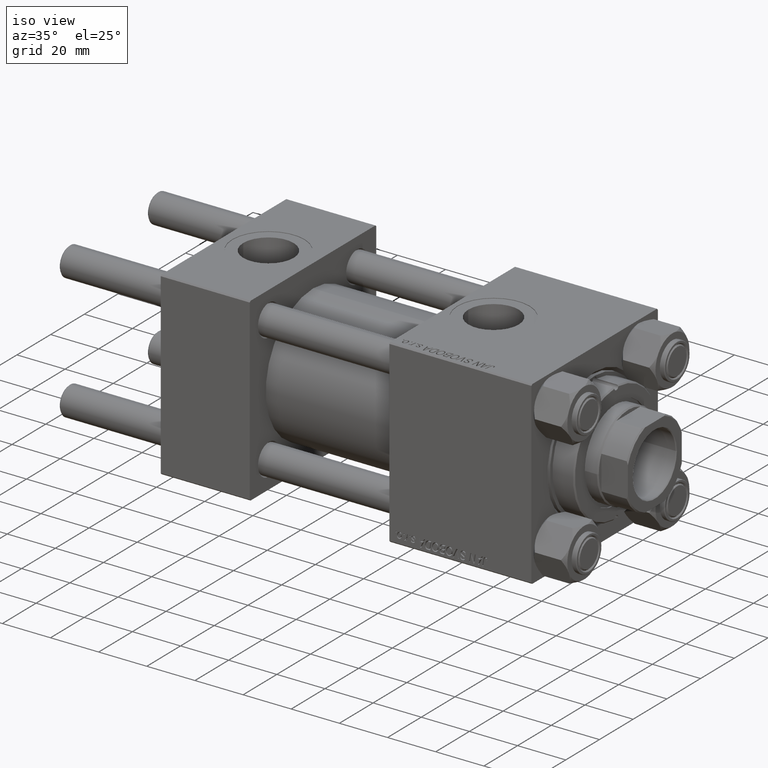
[diagram: clean part render]
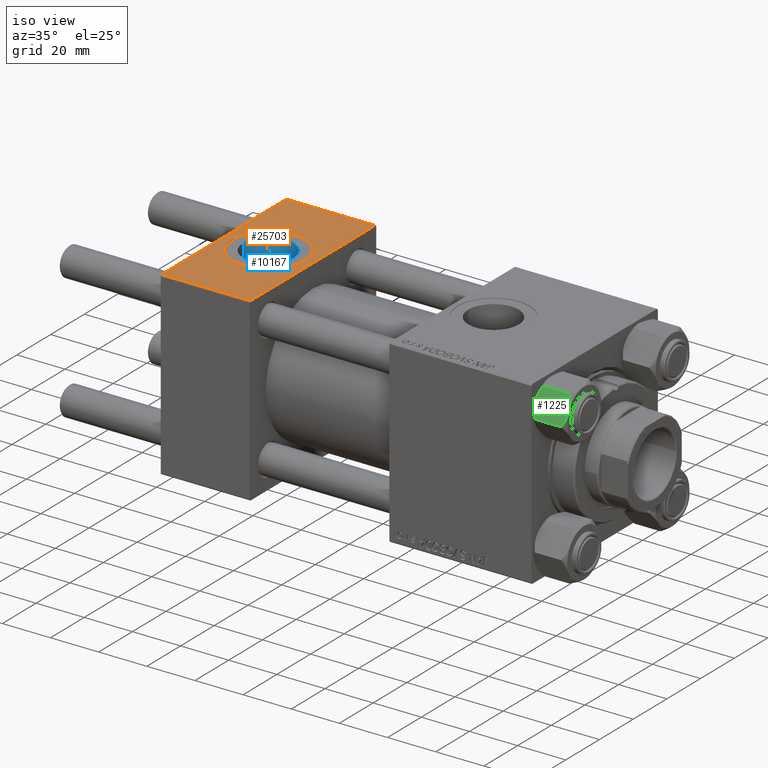
[diagram: same view with three faces highlighted in distinct colors, each labeled with its STEP entity id]
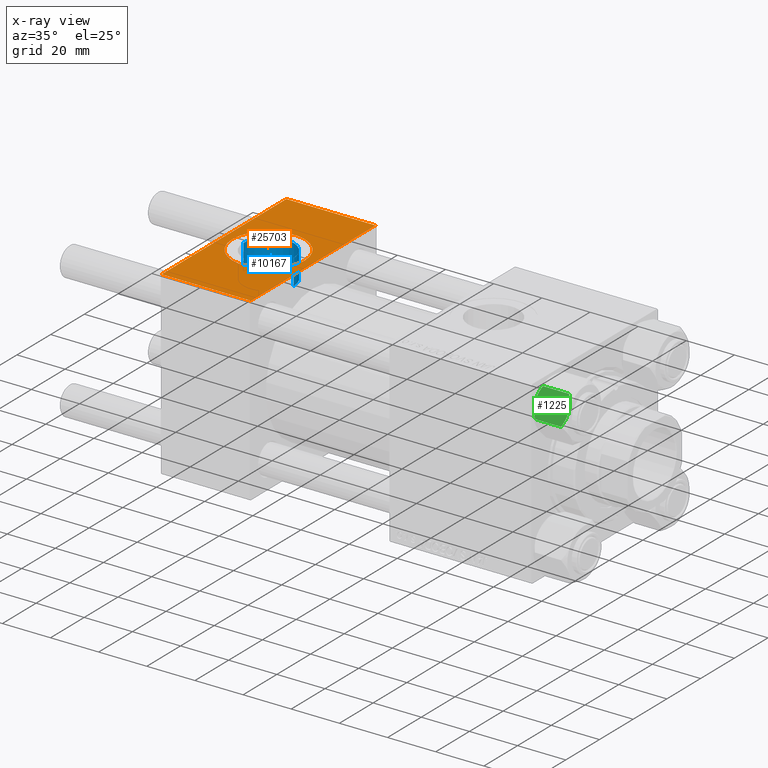
[diagram: x-ray of the same camera — body ghosted, the three highlighted faces saturated]
A machine part, iso view with three faces highlighted in distinct colors.
The next image is the same camera in x-ray (body ghosted, the three faces saturated) — at least one of them is partly hidden behind the body in this view.
Their STEP definitions:

[orange] entity #25703 — the highlighted planar face has unit normal (0, 0, -1).
#24 = VERTEX_POINT ( 'NONE', #30484 ) ;
#203 = EDGE_CURVE ( 'NONE', #17480, #24, #43848, .T. ) ;
#863 = ORIENTED_EDGE ( 'NONE', *, *, #40513, .F. ) ;
#1238 = CARTESIAN_POINT ( 'NONE',  ( 18.50000000000000000, -5.204170427930421283E-15, 37.50000000000000000 ) ) ;
#1673 = FACE_BOUND ( 'NONE', #30234, .T. ) ;
#2410 = PLANE ( 'NONE',  #31658 ) ;
#2637 = EDGE_CURVE ( 'NONE', #40175, #49337, #19119, .T. ) ;
#3749 = VECTOR ( 'NONE', #22657, 1000.000000000000000 ) ;
#7217 = CARTESIAN_POINT ( 'NONE',  ( 37.00000000000000000, 37.49999999999999289, 37.50000000000000000 ) ) ;
#7795 = LINE ( 'NONE', #45960, #21044 ) ;
#7820 = AXIS2_PLACEMENT_3D ( 'NONE', #1238, #16659, #32072 ) ;
#8464 = DIRECTION ( 'NONE',  ( 0.000000000000000000, -1.000000000000000000, -9.251858538542971581E-17 ) ) ;
#9344 = CARTESIAN_POINT ( 'NONE',  ( 18.50000000000000000, -5.204170427930421283E-15, 37.50000000000000000 ) ) ;
#10471 = VERTEX_POINT ( 'NONE', #47109 ) ;
#10489 = CARTESIAN_POINT ( 'NONE',  ( 37.00000000000000000, 37.49999999999999289, 37.50000000000000000 ) ) ;
#10587 = CIRCLE ( 'NONE', #46090, 15.00000000000000355 ) ;
#10822 = ORIENTED_EDGE ( 'NONE', *, *, #16105, .T. ) ;
#12034 = EDGE_CURVE ( 'NONE', #10471, #13330, #7795, .T. ) ;
#13330 = VERTEX_POINT ( 'NONE', #32987 ) ;
#16105 = EDGE_CURVE ( 'NONE', #24, #10471, #43587, .T. ) ;
#16659 = DIRECTION ( 'NONE',  ( 0.000000000000000000, 0.000000000000000000, 1.000000000000000000 ) ) ;
#17059 = ORIENTED_EDGE ( 'NONE', *, *, #203, .T. ) ;
#17158 = EDGE_CURVE ( 'NONE', #49337, #40175, #10587, .T. ) ;
#17480 = VERTEX_POINT ( 'NONE', #49863 ) ;
#17693 = EDGE_LOOP ( 'NONE', ( #10822, #42176, #863, #17059 ) ) ;
#18698 = ORIENTED_EDGE ( 'NONE', *, *, #2637, .F. ) ;
#18903 = ORIENTED_EDGE ( 'NONE', *, *, #17158, .F. ) ;
#19119 = CIRCLE ( 'NONE', #7820, 15.00000000000000355 ) ;
#20867 = CARTESIAN_POINT ( 'NONE',  ( 0.000000000000000000, 36.99999999999999289, 37.50000000000000000 ) ) ;
#21044 = VECTOR ( 'NONE', #30308, 1000.000000000000000 ) ;
#22657 = DIRECTION ( 'NONE',  ( 0.000000000000000000, -1.000000000000000000, -9.251858538542971581E-17 ) ) ;
#25703 = ADVANCED_FACE ( 'NONE', ( #1673, #32507 ), #2410, .F. ) ;
#27696 = DIRECTION ( 'NONE',  ( -1.000000000000000000, 0.000000000000000000, 0.000000000000000000 ) ) ;
#28725 = VECTOR ( 'NONE', #27696, 1000.000000000000000 ) ;
#29739 = LINE ( 'NONE', #7217, #3749 ) ;
#30234 = EDGE_LOOP ( 'NONE', ( #18698, #18903 ) ) ;
#30308 = DIRECTION ( 'NONE',  ( 1.000000000000000000, 0.000000000000000000, 0.000000000000000000 ) ) ;
#30484 = CARTESIAN_POINT ( 'NONE',  ( 0.000000000000000000, 36.99999999999999289, 37.50000000000000000 ) ) ;
#31658 = AXIS2_PLACEMENT_3D ( 'NONE', #10489, #48640, #44612 ) ;
#32072 = DIRECTION ( 'NONE',  ( 1.000000000000000000, 0.000000000000000000, 0.000000000000000000 ) ) ;
#32507 = FACE_OUTER_BOUND ( 'NONE', #17693, .T. ) ;
#32987 = CARTESIAN_POINT ( 'NONE',  ( 37.00000000000000000, -37.00000000000000711, 37.49999999999999289 ) ) ;
#36875 = CARTESIAN_POINT ( 'NONE',  ( 33.50000000000000000, -5.204170427930421283E-15, 37.50000000000000000 ) ) ;
#38375 = CARTESIAN_POINT ( 'NONE',  ( 3.499999999999997780, -3.367200229209391300E-15, 37.50000000000000000 ) ) ;
#38808 = VECTOR ( 'NONE', #8464, 1000.000000000000000 ) ;
#40175 = VERTEX_POINT ( 'NONE', #36875 ) ;
#40513 = EDGE_CURVE ( 'NONE', #17480, #13330, #29739, .T. ) ;
#42176 = ORIENTED_EDGE ( 'NONE', *, *, #12034, .T. ) ;
#43587 = LINE ( 'NONE', #47870, #38808 ) ;
#43848 = LINE ( 'NONE', #20867, #28725 ) ;
#44212 = DIRECTION ( 'NONE',  ( 1.000000000000000000, 0.000000000000000000, 0.000000000000000000 ) ) ;
#44458 = DIRECTION ( 'NONE',  ( 0.000000000000000000, 0.000000000000000000, 1.000000000000000000 ) ) ;
#44612 = DIRECTION ( 'NONE',  ( 0.000000000000000000, 1.000000000000000000, 9.251858538542971581E-17 ) ) ;
#45960 = CARTESIAN_POINT ( 'NONE',  ( 37.00000000000000000, -37.00000000000000711, 37.49999999999999289 ) ) ;
#46090 = AXIS2_PLACEMENT_3D ( 'NONE', #9344, #44458, #44212 ) ;
#47109 = CARTESIAN_POINT ( 'NONE',  ( 0.000000000000000000, -37.00000000000000711, 37.49999999999999289 ) ) ;
#47870 = CARTESIAN_POINT ( 'NONE',  ( 0.000000000000000000, 37.49999999999999289, 37.50000000000000000 ) ) ;
#48640 = DIRECTION ( 'NONE',  ( 0.000000000000000000, 9.251858538542971581E-17, -1.000000000000000000 ) ) ;
#49337 = VERTEX_POINT ( 'NONE', #38375 ) ;
#49863 = CARTESIAN_POINT ( 'NONE',  ( 37.00000000000000000, 36.99999999999999289, 37.50000000000000000 ) ) ;

[blue] entity #10167 — the highlighted cylindrical surface (edge-blend (fillet) strip) has radius 10.48 mm, axis along (0, 0, 1).
#5131 = CARTESIAN_POINT ( 'NONE',  ( 18.50000000000000000, -5.204170427930421283E-15, 26.69999999999999929 ) ) ;
#5444 = AXIS2_PLACEMENT_3D ( 'NONE', #43717, #24042, #16447 ) ;
#7341 = VERTEX_POINT ( 'NONE', #30363 ) ;
#7525 = LINE ( 'NONE', #46688, #9277 ) ;
#8859 = VERTEX_POINT ( 'NONE', #12100 ) ;
#9277 = VECTOR ( 'NONE', #23970, 1000.000000000000000 ) ;
#9351 = ORIENTED_EDGE ( 'NONE', *, *, #24565, .T. ) ;
#9999 = DIRECTION ( 'NONE',  ( 1.000000000000000000, 0.000000000000000000, 0.000000000000000000 ) ) ;
#10167 = ADVANCED_FACE ( 'NONE', ( #14048 ), #44118, .F. ) ;
#10486 = AXIS2_PLACEMENT_3D ( 'NONE', #37278, #22137, #9999 ) ;
#12100 = CARTESIAN_POINT ( 'NONE',  ( 8.019999999999999574, -3.920740582423995006E-15, 26.69999999999999929 ) ) ;
#14048 = FACE_OUTER_BOUND ( 'NONE', #31343, .T. ) ;
#16447 = DIRECTION ( 'NONE',  ( 1.000000000000000000, 0.000000000000000000, 0.000000000000000000 ) ) ;
#17012 = DIRECTION ( 'NONE',  ( 0.000000000000000000, 0.000000000000000000, 1.000000000000000000 ) ) ;
#17867 = ORIENTED_EDGE ( 'NONE', *, *, #46089, .F. ) ;
#20051 = DIRECTION ( 'NONE',  ( 1.000000000000000000, 0.000000000000000000, 0.000000000000000000 ) ) ;
#22137 = DIRECTION ( 'NONE',  ( -0.000000000000000000, -0.000000000000000000, 1.000000000000000000 ) ) ;
#23207 = CIRCLE ( 'NONE', #42555, 10.48000000000000043 ) ;
#23347 = CARTESIAN_POINT ( 'NONE',  ( 28.98000000000000043, -5.204170427930421283E-15, 26.69999999999999929 ) ) ;
#23853 = LINE ( 'NONE', #23347, #34027 ) ;
#23970 = DIRECTION ( 'NONE',  ( -0.000000000000000000, -0.000000000000000000, 1.000000000000000000 ) ) ;
#24042 = DIRECTION ( 'NONE',  ( 0.000000000000000000, 0.000000000000000000, 1.000000000000000000 ) ) ;
#24565 = EDGE_CURVE ( 'NONE', #39546, #7341, #23853, .T. ) ;
#30363 = CARTESIAN_POINT ( 'NONE',  ( 28.98000000000000043, -5.204170427930421283E-15, 37.29999999999999716 ) ) ;
#31343 = EDGE_LOOP ( 'NONE', ( #44779, #17867, #9351, #42658 ) ) ;
#32512 = VERTEX_POINT ( 'NONE', #32672 ) ;
#32672 = CARTESIAN_POINT ( 'NONE',  ( 8.019999999999999574, -3.920740582423995006E-15, 37.29999999999999716 ) ) ;
#33208 = CARTESIAN_POINT ( 'NONE',  ( 28.98000000000000043, -5.204170427930421283E-15, 26.69999999999999929 ) ) ;
#34027 = VECTOR ( 'NONE', #49847, 1000.000000000000000 ) ;
#35563 = EDGE_CURVE ( 'NONE', #8859, #32512, #7525, .T. ) ;
#37278 = CARTESIAN_POINT ( 'NONE',  ( 18.50000000000000000, -5.204170427930421283E-15, 26.69999999999999929 ) ) ;
#39546 = VERTEX_POINT ( 'NONE', #33208 ) ;
#42555 = AXIS2_PLACEMENT_3D ( 'NONE', #5131, #17012, #20051 ) ;
#42658 = ORIENTED_EDGE ( 'NONE', *, *, #46371, .T. ) ;
#43717 = CARTESIAN_POINT ( 'NONE',  ( 18.50000000000000000, -5.204170427930421283E-15, 37.29999999999999716 ) ) ;
#44118 = CYLINDRICAL_SURFACE ( 'NONE', #10486, 10.48000000000000043 ) ;
#44779 = ORIENTED_EDGE ( 'NONE', *, *, #35563, .F. ) ;
#46089 = EDGE_CURVE ( 'NONE', #39546, #8859, #23207, .T. ) ;
#46371 = EDGE_CURVE ( 'NONE', #7341, #32512, #49004, .T. ) ;
#46688 = CARTESIAN_POINT ( 'NONE',  ( 8.019999999999999574, -3.920740582423995006E-15, 26.69999999999999929 ) ) ;
#49004 = CIRCLE ( 'NONE', #5444, 10.48000000000000043 ) ;
#49847 = DIRECTION ( 'NONE',  ( -0.000000000000000000, -0.000000000000000000, 1.000000000000000000 ) ) ;

[green] entity #1225 — the highlighted planar face has unit normal (-0, 0.9104, -0.4137).
#1225 = ADVANCED_FACE ( 'NONE', ( #18265 ), #25856, .F. ) ;
#1422 = CARTESIAN_POINT ( 'NONE',  ( 5.359707691559670195, 10.06321519197518199, -1.331638653804663619 ) ) ;
#2216 = VERTEX_POINT ( 'NONE', #47777 ) ;
#4722 = CARTESIAN_POINT ( 'NONE',  ( 4.900668367960789418, 10.06321519197518732, -1.121556683709783231 ) ) ;
#6287 = ORIENTED_EDGE ( 'NONE', *, *, #29458, .F. ) ;
#6621 = DIRECTION ( 'NONE',  ( 5.971509383741162381E-16, -1.000000000000000000, 0.000000000000000000 ) ) ;
#6739 = CARTESIAN_POINT ( 'NONE',  ( 5.809999999999994280, 10.06321519197518377, -12.44321519197517389 ) ) ;
#7306 = EDGE_CURVE ( 'NONE', #48045, #48947, #49794, .T. ) ;
#7960 = VECTOR ( 'NONE', #31113, 1000.000000000000000 ) ;
#8375 = VECTOR ( 'NONE', #27228, 1000.000000000000000 ) ;
#9322 = CARTESIAN_POINT ( 'NONE',  ( 5.809999999999994280, 10.06321519197518377, -12.44321519197517389 ) ) ;
#9888 = B_SPLINE_CURVE_WITH_KNOTS ( 'NONE', 3,
 ( #20143, #1422, #4722, #20888, #16847, #32257, #43870, #36289 ),
 .UNSPECIFIED., .F., .F.,
 ( 4, 2, 2, 4 ),
 ( 0.01467889604968878464, 0.01619420351931634416, 0.01770951098894390369, 0.02074012592819901926 ),
 .UNSPECIFIED. ) ;
#10035 = CARTESIAN_POINT ( 'NONE',  ( -4.908816193182384602, 10.06321519197518022, -1.106192904616017048 ) ) ;
#10280 = CARTESIAN_POINT ( 'NONE',  ( 3.960942496020599002, 10.06321519197518199, -13.28842716763894671 ) ) ;
#12208 = EDGE_CURVE ( 'NONE', #2216, #23048, #43989, .T. ) ;
#12236 = EDGE_CURVE ( 'NONE', #32619, #48947, #12673, .T. ) ;
#12329 = EDGE_CURVE ( 'NONE', #48045, #2216, #28343, .T. ) ;
#12531 = CARTESIAN_POINT ( 'NONE',  ( -6.009258394948640858E-15, 10.06321519197518022, -14.00000000000000000 ) ) ;
#12673 = B_SPLINE_CURVE_WITH_KNOTS ( 'NONE', 3,
 ( #29004, #41117, #40377, #32787, #48194, #13592, #40625, #10035, #21432 ),
 .UNSPECIFIED., .F., .F.,
 ( 4, 2, 1, 2, 4 ),
 ( 0.02074012592819901926, 0.02149589804477578317, 0.02225167016135255055, 0.02376321439450607836, 0.02678630286081313747 ),
 .UNSPECIFIED. ) ;
#13592 = CARTESIAN_POINT ( 'NONE',  ( -2.508586450168046156, 10.06321519197518022, -0.2975752632032391820 ) ) ;
#13720 = CARTESIAN_POINT ( 'NONE',  ( -6.009258394948640858E-15, 10.06321519197518022, 0.000000000000000000 ) ) ;
#16847 = CARTESIAN_POINT ( 'NONE',  ( 3.474497094393246055, 10.06321519197518199, -0.5726960901042849050 ) ) ;
#18265 = FACE_OUTER_BOUND ( 'NONE', #42796, .T. ) ;
#19870 = CARTESIAN_POINT ( 'NONE',  ( -4.900668367960797411, 10.06321519197517667, -12.87844331629021966 ) ) ;
#20143 = CARTESIAN_POINT ( 'NONE',  ( 5.809999999999995168, 10.06321519197518377, -1.556784808024826106 ) ) ;
#20888 = CARTESIAN_POINT ( 'NONE',  ( 3.958929922320414185, 10.06321519197518377, -0.7421398502354088489 ) ) ;
#21183 = CARTESIAN_POINT ( 'NONE',  ( 0.2543996698847451055, 10.06321519197518199, -13.99999999999999289 ) ) ;
#21432 = CARTESIAN_POINT ( 'NONE',  ( -5.810000000000003162, 10.06321519197517667, -1.556784808024824107 ) ) ;
#22309 = AXIS2_PLACEMENT_3D ( 'NONE', #41735, #6621, #33669 ) ;
#23048 = VERTEX_POINT ( 'NONE', #9322 ) ;
#23089 = CARTESIAN_POINT ( 'NONE',  ( -5.810000000000004050, 10.06321519197517667, -12.44321519197517745 ) ) ;
#24181 = CARTESIAN_POINT ( 'NONE',  ( -1.020132157807628781, 10.06321519197518022, -13.99999999999999467 ) ) ;
#24436 = CARTESIAN_POINT ( 'NONE',  ( -5.359707691559678189, 10.06321519197518022, -12.66836134619534171 ) ) ;
#24986 = CARTESIAN_POINT ( 'NONE',  ( 1.772424303831120707, 10.06321519197518022, -13.86611290782775541 ) ) ;
#25234 = CARTESIAN_POINT ( 'NONE',  ( 4.908816193182378385, 10.06321519197518199, -12.89380709538398406 ) ) ;
#25369 = ORIENTED_EDGE ( 'NONE', *, *, #7306, .T. ) ;
#25699 = EDGE_CURVE ( 'NONE', #39641, #32619, #9888, .T. ) ;
#25856 = PLANE ( 'NONE',  #22309 ) ;
#25970 = CARTESIAN_POINT ( 'NONE',  ( 1.018274738099081977, 10.06321519197517844, -13.95177257919928415 ) ) ;
#27228 = DIRECTION ( 'NONE',  ( -0.000000000000000000, -0.000000000000000000, 1.000000000000000000 ) ) ;
#28343 = B_SPLINE_CURVE_WITH_KNOTS ( 'NONE', 3,
 ( #47396, #24436, #19870, #31745, #35523, #47148, #24181, #12531 ),
 .UNSPECIFIED., .F., .F.,
 ( 4, 2, 2, 4 ),
 ( 0.01467889604968878811, 0.01619420351931634763, 0.01770951098894390716, 0.02074012592819902273 ),
 .UNSPECIFIED. ) ;
#28759 = CARTESIAN_POINT ( 'NONE',  ( 0.5112014849988854026, 10.06321519197518022, -13.99019602057108003 ) ) ;
#29004 = CARTESIAN_POINT ( 'NONE',  ( -6.009258394948640858E-15, 10.06321519197518022, 0.000000000000000000 ) ) ;
#29458 = EDGE_CURVE ( 'NONE', #23048, #39641, #45912, .T. ) ;
#30414 = CARTESIAN_POINT ( 'NONE',  ( 5.809999999999995168, 10.06321519197518377, -1.556784808024826106 ) ) ;
#31113 = DIRECTION ( 'NONE',  ( -0.000000000000000000, -0.000000000000000000, 1.000000000000000000 ) ) ;
#31685 = ORIENTED_EDGE ( 'NONE', *, *, #12236, .F. ) ;
#31745 = CARTESIAN_POINT ( 'NONE',  ( -3.958929922320423067, 10.06321519197517489, -13.25786014976459626 ) ) ;
#31768 = ORIENTED_EDGE ( 'NONE', *, *, #12208, .F. ) ;
#32257 = CARTESIAN_POINT ( 'NONE',  ( 2.013954290287958138, 10.06321519197518377, -0.1570111679760076706 ) ) ;
#32619 = VERTEX_POINT ( 'NONE', #13720 ) ;
#32787 = CARTESIAN_POINT ( 'NONE',  ( -1.018274738099091303, 10.06321519197518022, -0.04822742080071992093 ) ) ;
#33288 = CARTESIAN_POINT ( 'NONE',  ( 2.508586450168036386, 10.06321519197518199, -13.70242473679676287 ) ) ;
#33669 = DIRECTION ( 'NONE',  ( 1.000000000000000000, 5.971509383741162381E-16, 0.000000000000000000 ) ) ;
#34148 = CARTESIAN_POINT ( 'NONE',  ( -5.810000000000003162, 10.06321519197517667, -14.00000000000000000 ) ) ;
#35523 = CARTESIAN_POINT ( 'NONE',  ( -3.474497094393259378, 10.06321519197517844, -13.42730390989571809 ) ) ;
#36289 = CARTESIAN_POINT ( 'NONE',  ( -6.009258394948640858E-15, 10.06321519197518022, 0.000000000000000000 ) ) ;
#37940 = CARTESIAN_POINT ( 'NONE',  ( -5.810000000000003162, 10.06321519197517667, -1.556784808024824107 ) ) ;
#39641 = VERTEX_POINT ( 'NONE', #30414 ) ;
#40377 = CARTESIAN_POINT ( 'NONE',  ( -0.5112014849988953946, 10.06321519197518199, -0.009803979428924322267 ) ) ;
#40625 = CARTESIAN_POINT ( 'NONE',  ( -3.960942496020607884, 10.06321519197517844, -0.7115728323610508443 ) ) ;
#41117 = CARTESIAN_POINT ( 'NONE',  ( -0.2543996698847555971, 10.06321519197517844, -8.687169907040107433E-15 ) ) ;
#41359 = CARTESIAN_POINT ( 'NONE',  ( -6.009258394948640858E-15, 10.06321519197518022, -14.00000000000000000 ) ) ;
#41735 = CARTESIAN_POINT ( 'NONE',  ( -5.810000000000003162, 10.06321519197517667, -14.00000000000000000 ) ) ;
#42366 = CARTESIAN_POINT ( 'NONE',  ( 5.809999999999995168, 10.06321519197518377, -14.00000000000000000 ) ) ;
#42796 = EDGE_LOOP ( 'NONE', ( #49710, #25369, #31685, #47453, #6287, #31768 ) ) ;
#43870 = CARTESIAN_POINT ( 'NONE',  ( 1.020132157807618345, 10.06321519197518022, -8.626183534837794653E-15 ) ) ;
#43989 = B_SPLINE_CURVE_WITH_KNOTS ( 'NONE', 3,
 ( #41359, #21183, #28759, #25970, #24986, #33288, #10280, #25234, #6739 ),
 .UNSPECIFIED., .F., .F.,
 ( 4, 2, 1, 2, 4 ),
 ( 0.02074012592819902273, 0.02149589804477578664, 0.02225167016135255055, 0.02376321439450608183, 0.02678630286081314094 ),
 .UNSPECIFIED. ) ;
#45912 = LINE ( 'NONE', #42366, #8375 ) ;
#47148 = CARTESIAN_POINT ( 'NONE',  ( -2.013954290287971460, 10.06321519197518022, -13.84298883202399466 ) ) ;
#47396 = CARTESIAN_POINT ( 'NONE',  ( -5.810000000000004050, 10.06321519197517667, -12.44321519197517745 ) ) ;
#47453 = ORIENTED_EDGE ( 'NONE', *, *, #25699, .F. ) ;
#47777 = CARTESIAN_POINT ( 'NONE',  ( -6.009258394948640858E-15, 10.06321519197518022, -14.00000000000000000 ) ) ;
#48045 = VERTEX_POINT ( 'NONE', #23089 ) ;
#48194 = CARTESIAN_POINT ( 'NONE',  ( -1.772424303831134917, 10.06321519197518022, -0.1338870921722490892 ) ) ;
#48947 = VERTEX_POINT ( 'NONE', #37940 ) ;
#49710 = ORIENTED_EDGE ( 'NONE', *, *, #12329, .F. ) ;
#49794 = LINE ( 'NONE', #34148, #7960 ) ;